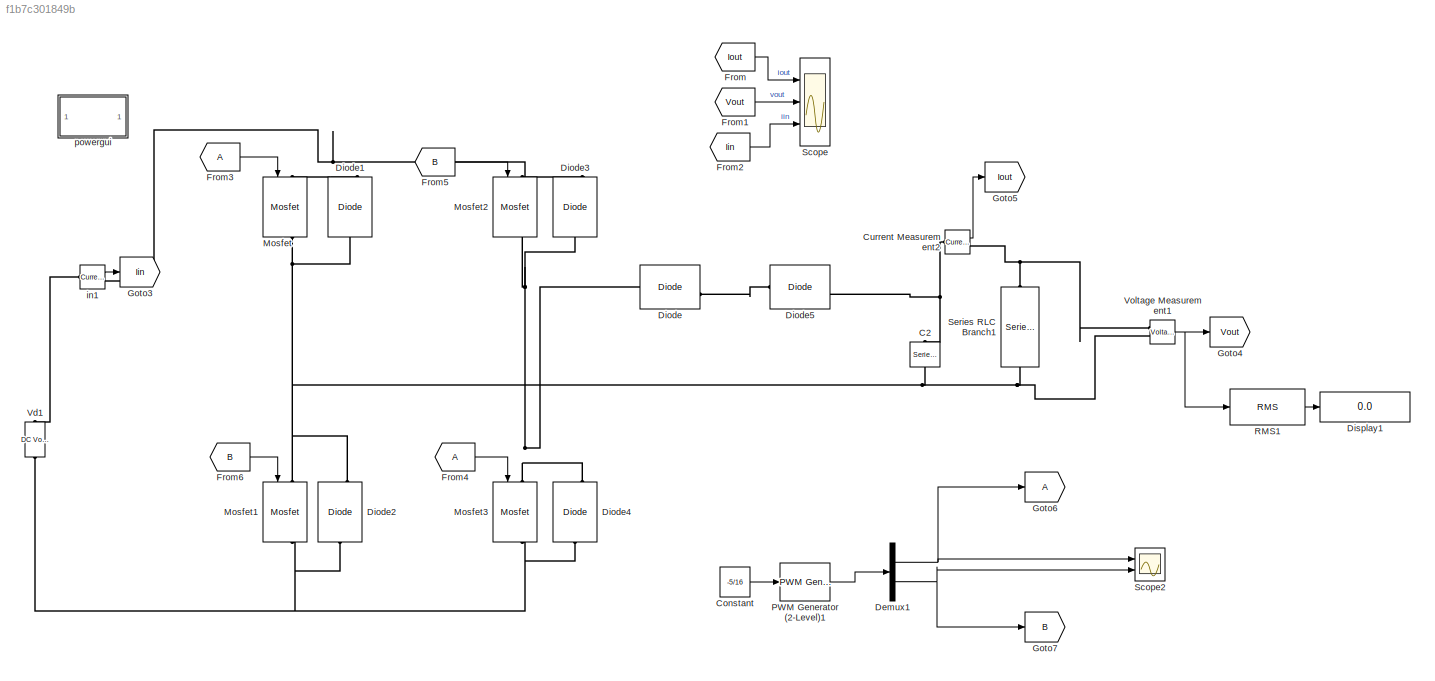
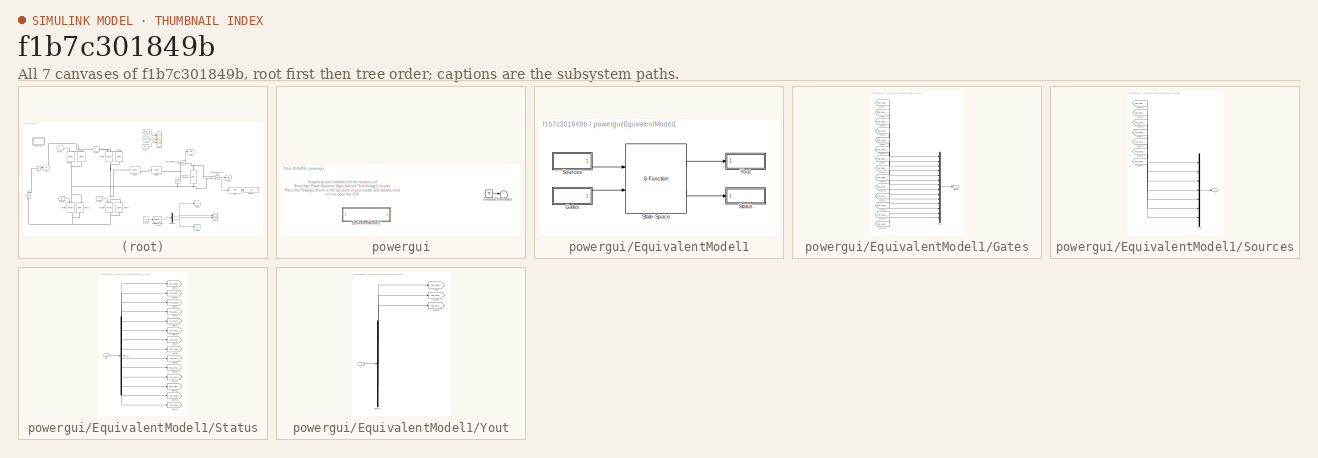
[diagram: thumbnail index - all 7 canvases of the model, root first then tree order]
MODEL slx_f1b7c301849b
KIND model
CONFIG AbsTol = auto
CONFIG EnableMultiTasking = on
CONFIG FixedStep = auto
CONFIG MaxStep = 1e-4
CONFIG MinStep = auto
CONFIG RelTol = 1e-3
CONFIG SampleTimeConstraint = Unconstrained
CONFIG Solver = VariableStepAuto
CONFIG SolverName = VariableStepAuto
CONFIG StartTime = 0.0
CONFIG StopTime = 15e-3
BLOCK [Reference] C2  REF=powerlib/Elements/Series RLC Branch
  Ports = [0, 0, 0, 0, 0, 1, 1]
  SourceBlock = powerlib/Elements/Series RLC Branch
  SourceProductBaseCode = PS
  SourceProductName = Simscape Power Systems
  SourceType = Series RLC Branch
BLOCK [Constant] Constant
  Value = -5/16
BLOCK [Reference] Current Measurement2  REF=powerlib/Measurements/Current Measurement
  Ports = [0, 1, 0, 0, 0, 1, 1]
  SourceBlock = powerlib/Measurements/Current Measurement
  SourceProductBaseCode = PS
  SourceProductName = Simscape Power Systems
  SourceType = Current Measurement
  UserDataPersistent = on
BLOCK [Demux] Demux1
  DisplayOption = bar
  Outputs = 2
  Ports = [1, 2]
BLOCK [Reference] Diode  REF=powerlib/Power
Electronics/Diode
  Ports = [0, 1, 0, 0, 0, 1, 1]
  SourceBlock = powerlib/Power\nElectronics/Diode
  SourceProductBaseCode = PS
  SourceProductName = Simscape Power Systems
  SourceType = Diode
BLOCK [Reference] Diode1  REF=powerlib/Power
Electronics/Diode
  Ports = [0, 1, 0, 0, 0, 1, 1]
  SourceBlock = powerlib/Power\nElectronics/Diode
  SourceProductBaseCode = PS
  SourceProductName = Simscape Power Systems
  SourceType = Diode
BLOCK [Reference] Diode2  REF=powerlib/Power
Electronics/Diode
  Ports = [0, 1, 0, 0, 0, 1, 1]
  SourceBlock = powerlib/Power\nElectronics/Diode
  SourceProductBaseCode = PS
  SourceProductName = Simscape Power Systems
  SourceType = Diode
BLOCK [Reference] Diode3  REF=powerlib/Power
Electronics/Diode
  Ports = [0, 1, 0, 0, 0, 1, 1]
  SourceBlock = powerlib/Power\nElectronics/Diode
  SourceProductBaseCode = PS
  SourceProductName = Simscape Power Systems
  SourceType = Diode
BLOCK [Reference] Diode4  REF=powerlib/Power
Electronics/Diode
  Ports = [0, 1, 0, 0, 0, 1, 1]
  SourceBlock = powerlib/Power\nElectronics/Diode
  SourceProductBaseCode = PS
  SourceProductName = Simscape Power Systems
  SourceType = Diode
BLOCK [Reference] Diode5  REF=powerlib/Power
Electronics/Diode
  Ports = [0, 1, 0, 0, 0, 1, 1]
  SourceBlock = powerlib/Power\nElectronics/Diode
  SourceProductBaseCode = PS
  SourceProductName = Simscape Power Systems
  SourceType = Diode
BLOCK [Display] Display1
  Decimation = 1
  Ports = [1]
BLOCK [From] From
  GotoTag = Iout
BLOCK [From] From1
  GotoTag = Vout
BLOCK [From] From2
  GotoTag = Iin
BLOCK [From] From3
BLOCK [From] From4
BLOCK [From] From5
  GotoTag = B
BLOCK [From] From6
  GotoTag = B
BLOCK [Goto] Goto3
  GotoTag = Iin
BLOCK [Goto] Goto4
  GotoTag = Vout
BLOCK [Goto] Goto5
  GotoTag = Iout
BLOCK [Goto] Goto6
BLOCK [Goto] Goto7
  GotoTag = B
BLOCK [Reference] Mosfet  REF=powerlib/Power
Electronics/Mosfet
  Ports = [1, 1, 0, 0, 0, 1, 1]
  SourceBlock = powerlib/Power\nElectronics/Mosfet
  SourceProductBaseCode = PS
  SourceProductName = Simscape Power Systems
  SourceType = Mosfet
BLOCK [Reference] Mosfet1  REF=powerlib/Power
Electronics/Mosfet
  Ports = [1, 1, 0, 0, 0, 1, 1]
  SourceBlock = powerlib/Power\nElectronics/Mosfet
  SourceProductBaseCode = PS
  SourceProductName = Simscape Power Systems
  SourceType = Mosfet
BLOCK [Reference] Mosfet2  REF=powerlib/Power
Electronics/Mosfet
  Ports = [1, 1, 0, 0, 0, 1, 1]
  SourceBlock = powerlib/Power\nElectronics/Mosfet
  SourceProductBaseCode = PS
  SourceProductName = Simscape Power Systems
  SourceType = Mosfet
BLOCK [Reference] Mosfet3  REF=powerlib/Power
Electronics/Mosfet
  Ports = [1, 1, 0, 0, 0, 1, 1]
  SourceBlock = powerlib/Power\nElectronics/Mosfet
  SourceProductBaseCode = PS
  SourceProductName = Simscape Power Systems
  SourceType = Mosfet
BLOCK [Reference] PWM Generator (2-Level)1  REF=powerlib_meascontrol/Pulse & Signal
Generators/PWM Generator
(2-Level)
  Ports = [1, 1]
  SourceBlock = powerlib_meascontrol/Pulse & Signal\nGenerators/PWM Generator\n(2-Level)
  SourceProductBaseCode = PS
  SourceProductName = Simscape Power Systems
  SourceType = PWM Generator (2-Level)
BLOCK [Reference] RMS1  REF=dspstat3/RMS
  Ports = [1, 1]
  SourceBlock = dspstat3/RMS
  SourceProductBaseCode = DS
  SourceProductName = DSP System Toolbox
  SourceType = RMS
  UserDataPersistent = on
BLOCK [Scope] Scope
  NumInputPorts = 3
  Ports = [3]
  ScopeSpecificationString = Simulink.scopes.TimeScopeBlockCfg('CurrentConfiguration', extmgr.ConfigurationSet(extmgr.Configuration('Core','General UI',true,'FigureColor',[1 1 1]),extmgr.Configuration('Core','Source UI',true),extmgr.Configuration('Sources','WiredSimulink',true),extmgr.Configuration('Visuals','Time Domain',true,'SerializedDisplays',{struct('MinYLimReal','-1.98673','MaxYLimReal','17.88054','YLabelReal','','MinY...<+3457ch>
BLOCK [Scope] Scope2
  NumInputPorts = 2
  Ports = [2]
  ScopeSpecificationString = Simulink.scopes.TimeScopeBlockCfg('CurrentConfiguration', extmgr.ConfigurationSet(extmgr.Configuration('Core','General UI',true),extmgr.Configuration('Core','Source UI',true),extmgr.Configuration('Sources','WiredSimulink',true,'DataLoggingVariableName','ScopeData2'),extmgr.Configuration('Visuals','Time Domain',true,'SerializedDisplays',{struct('MinYLimReal','-0.03533','MaxYLimReal','1.04244','YLab...<+2051ch>
BLOCK [Reference] Series RLC Branch1  REF=powerlib/Elements/Series RLC Branch
  Ports = [0, 0, 0, 0, 0, 1, 1]
  SourceBlock = powerlib/Elements/Series RLC Branch
  SourceProductBaseCode = PS
  SourceProductName = Simscape Power Systems
  SourceType = Series RLC Branch
BLOCK [Reference] Vd1  REF=powerlib/Electrical
Sources/DC Voltage Source
  Ports = [0, 0, 0, 0, 0, 1, 1]
  SourceBlock = powerlib/Electrical\nSources/DC Voltage Source
  SourceProductBaseCode = PS
  SourceProductName = Simscape Power Systems
  SourceType = DC Voltage Source
BLOCK [Reference] Voltage Measurement1  REF=powerlib/Measurements/Voltage Measurement
  Ports = [0, 1, 0, 0, 0, 2]
  SourceBlock = powerlib/Measurements/Voltage Measurement
  SourceProductBaseCode = PS
  SourceProductName = Simscape Power Systems
  SourceType = Voltage Measurement
  UserDataPersistent = on
BLOCK [Reference] in1  REF=powerlib/Measurements/Current Measurement
  Ports = [0, 1, 0, 0, 0, 1, 1]
  SourceBlock = powerlib/Measurements/Current Measurement
  SourceProductBaseCode = PS
  SourceProductName = Simscape Power Systems
  SourceType = Current Measurement
  UserDataPersistent = on
BLOCK [SubSystem] powergui
  AncestorBlock = powerlib/powergui
  DialogController = POWERSYS.PowerSysDialog
  InitFcn = powergui( 'InitFcn_Callback' , gcb , 0 , [ ] );
  OpenFcn = sps_rtmsupport('OpenFcn',gcbh)
  Ports = []
  PreSaveFcn = powergui( 'PreSaveFcn_Callback' , gcb , [ ] , [ ] );
  Priority = 1
  RequestExecContextInheritance = off
  Variant = off
BLOCK [SubSystem] powergui/EquivalentModel1
  Ports = []
  RequestExecContextInheritance = off
  Variant = off
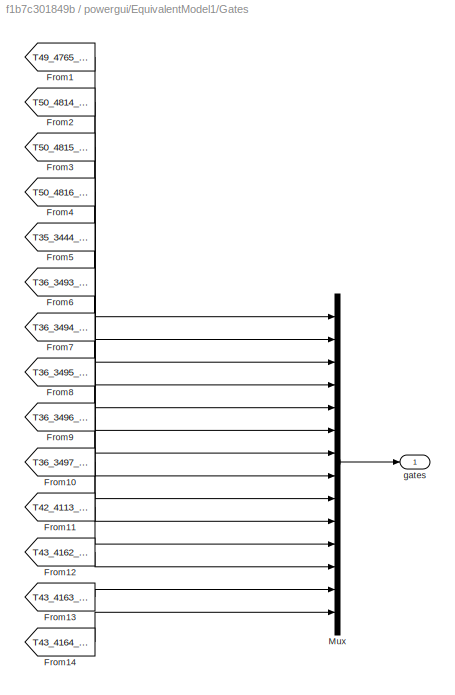
BLOCK [SubSystem] powergui/EquivalentModel1/Gates
  Ports = [0, 1]
  RequestExecContextInheritance = off
  Variant = off
BLOCK [From] powergui/EquivalentModel1/Gates/From1
  GotoTag = T49_4765_3776215220043
  TagVisibility = global
BLOCK [From] powergui/EquivalentModel1/Gates/From10
  GotoTag = T36_3497_1931408436786
  TagVisibility = global
BLOCK [From] powergui/EquivalentModel1/Gates/From11
  GotoTag = T42_4113_2713784241858
  TagVisibility = global
BLOCK [From] powergui/EquivalentModel1/Gates/From12
  GotoTag = T43_4162_2787571945869
  TagVisibility = global
BLOCK [From] powergui/EquivalentModel1/Gates/From13
  GotoTag = T43_4163_2786274727962
  TagVisibility = global
BLOCK [From] powergui/EquivalentModel1/Gates/From14
  GotoTag = T43_4164_2785056844474
  TagVisibility = global
BLOCK [From] powergui/EquivalentModel1/Gates/From2
  GotoTag = T50_4814_3915036252506
  TagVisibility = global
BLOCK [From] powergui/EquivalentModel1/Gates/From3
  GotoTag = T50_4815_3913216397506
  TagVisibility = global
BLOCK [From] powergui/EquivalentModel1/Gates/From4
  GotoTag = T50_4816_3911464770106
  TagVisibility = global
BLOCK [From] powergui/EquivalentModel1/Gates/From5
  GotoTag = T35_3444_1914061800807
  TagVisibility = global
BLOCK [From] powergui/EquivalentModel1/Gates/From6
  GotoTag = T36_3493_1933610976468
  TagVisibility = global
BLOCK [From] powergui/EquivalentModel1/Gates/From7
  GotoTag = T36_3494_1932927008214
  TagVisibility = global
BLOCK [From] powergui/EquivalentModel1/Gates/From8
  GotoTag = T36_3495_1932331928849
  TagVisibility = global
BLOCK [From] powergui/EquivalentModel1/Gates/From9
  GotoTag = T36_3496_1931825738373
  TagVisibility = global
BLOCK [Mux] powergui/EquivalentModel1/Gates/Mux
  DisplayOption = bar
  Inputs = [1 1 1 1 1 1 1 1 1 1 1 1 1 1]
  Ports = [14, 1]
BLOCK [Outport] powergui/EquivalentModel1/Gates/gates
  IconDisplay = Port number
BLOCK [SubSystem] powergui/EquivalentModel1/Sources
  Ports = [0, 1]
  RequestExecContextInheritance = off
  Variant = off
BLOCK [From] powergui/EquivalentModel1/Sources/From1
  GotoTag = T33_3194_1616235997557
  TagVisibility = global
BLOCK [From] powergui/EquivalentModel1/Sources/From2
  GotoTag = T33_3191_1371398149678
  TagVisibility = global
BLOCK [From] powergui/EquivalentModel1/Sources/From3
  GotoTag = T34_3240_1345314080116
  TagVisibility = global
BLOCK [From] powergui/EquivalentModel1/Sources/From4
  GotoTag = T34_3241_1345088276194
  TagVisibility = global
BLOCK [From] powergui/EquivalentModel1/Sources/From5
  GotoTag = T34_3242_1344956589920
  TagVisibility = global
BLOCK [From] powergui/EquivalentModel1/Sources/From6
  GotoTag = T34_3243_1344919021292
  TagVisibility = global
BLOCK [From] powergui/EquivalentModel1/Sources/From7
  GotoTag = T34_3244_1344975570312
  TagVisibility = global
BLOCK [Mux] powergui/EquivalentModel1/Sources/Mux
  DisplayOption = bar
  Inputs = [1 1 1 1 1 1 1]
  Ports = [7, 1]
BLOCK [Outport] powergui/EquivalentModel1/Sources/u
  IconDisplay = Port number
BLOCK [S-Function] powergui/EquivalentModel1/State-Space
  EnableBusSupport = off
  FunctionName = sfun_spid_contc
  Parameters = S.Mg, [S.nb.x S.nb.u S.nb.y S.nb.s], S.x0, S.MgColNames, S.SwitchVf, S.SwitchType, S.SwitchGateInitialValue, S.SwitchTolerance,S.SaveMatrices,S.BufferSize
  Ports = [2, 2]
  SFcnIsStateOwnerBlock = off
  SFunctionDeploymentMode = off
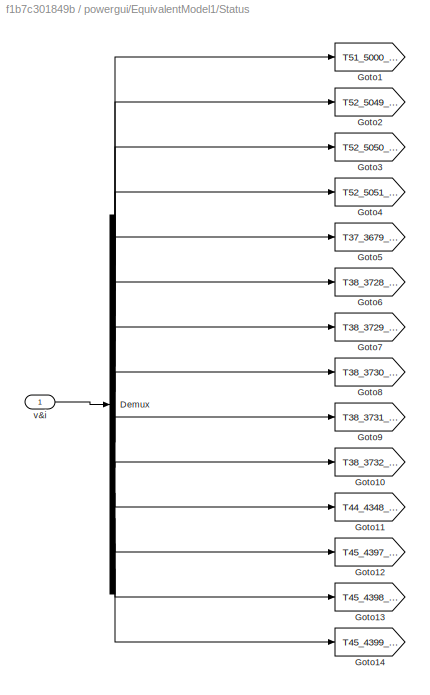
BLOCK [SubSystem] powergui/EquivalentModel1/Status
  Ports = [1]
  RequestExecContextInheritance = off
  Variant = off
BLOCK [Demux] powergui/EquivalentModel1/Status/Demux
  DisplayOption = bar
  Outputs = [2 2 2 2 2 2 2 2 2 2 2 2 2 2]
  Ports = [1, 14]
BLOCK [Goto] powergui/EquivalentModel1/Status/Goto1
  GotoTag = T51_5000_4369165291835
  TagVisibility = global
BLOCK [Goto] powergui/EquivalentModel1/Status/Goto10
  GotoTag = T38_3732_2375832757667
  TagVisibility = global
BLOCK [Goto] powergui/EquivalentModel1/Status/Goto11
  GotoTag = T44_4348_3216779706147
  TagVisibility = global
BLOCK [Goto] powergui/EquivalentModel1/Status/Goto12
  GotoTag = T45_4397_3322042081495
  TagVisibility = global
BLOCK [Goto] powergui/EquivalentModel1/Status/Goto13
  GotoTag = T45_4398_3320466999616
  TagVisibility = global
BLOCK [Goto] powergui/EquivalentModel1/Status/Goto14
  GotoTag = T45_4399_3318967726182
  TagVisibility = global
BLOCK [Goto] powergui/EquivalentModel1/Status/Goto2
  GotoTag = T52_5049_4535289229544
  TagVisibility = global
BLOCK [Goto] powergui/EquivalentModel1/Status/Goto3
  GotoTag = T52_5050_4533248817994
  TagVisibility = global
BLOCK [Goto] powergui/EquivalentModel1/Status/Goto4
  GotoTag = T52_5051_4531274009906
  TagVisibility = global
BLOCK [Goto] powergui/EquivalentModel1/Status/Goto5
  GotoTag = T37_3679_2324086385225
  TagVisibility = global
BLOCK [Goto] powergui/EquivalentModel1/Status/Goto6
  GotoTag = T38_3728_2379459727795
  TagVisibility = global
BLOCK [Goto] powergui/EquivalentModel1/Status/Goto7
  GotoTag = T38_3729_2378426669474
  TagVisibility = global
BLOCK [Goto] powergui/EquivalentModel1/Status/Goto8
  GotoTag = T38_3730_2377477821679
  TagVisibility = global
BLOCK [Goto] powergui/EquivalentModel1/Status/Goto9
  GotoTag = T38_3731_2376613184410
  TagVisibility = global
BLOCK [Inport] powergui/EquivalentModel1/Status/v&i
  IconDisplay = Port number
BLOCK [SubSystem] powergui/EquivalentModel1/Yout
  Ports = [1]
  RequestExecContextInheritance = off
  Variant = off
BLOCK [Demux] powergui/EquivalentModel1/Yout/Demux
  DisplayOption = bar
  Outputs = [1 1 1]
  Ports = [1, 3]
BLOCK [Goto] powergui/EquivalentModel1/Yout/Goto1
  GotoTag = T52_5168_4565973424268
  TagVisibility = global
BLOCK [Goto] powergui/EquivalentModel1/Yout/Goto2
  GotoTag = T52_5186_4630830018250
  TagVisibility = global
BLOCK [Goto] powergui/EquivalentModel1/Yout/Goto3
  GotoTag = T35_3471_2056023859277
  TagVisibility = global
BLOCK [Inport] powergui/EquivalentModel1/Yout/v,i
  IconDisplay = Port number
BLOCK [Ground] powergui/Ground
BLOCK [Terminator] powergui/Terminator
ANNOTATION powergui: Graphical user interface for the analysis of Simscape Power Systems (Specialized Technology) circuits. Place the Powergui block in the top-level of your model and double-click on it to open the GUI.
LINE Constant:1 -> PWM Generator (2-Level)1:1
LINE Current Measurement2:1 -> Goto5:1
NET Demux1:1 -> Goto6:1, Scope2:1
NET Demux1:2 -> Goto7:1, Scope2:2
LINE From1:1 -> Scope:2
LINE From2:1 -> Scope:3
LINE From3:1 -> Mosfet:1
LINE From4:1 -> Mosfet3:1
LINE From5:1 -> Mosfet2:1
LINE From6:1 -> Mosfet1:1
LINE From:1 -> Scope:1
LINE PWM Generator (2-Level)1:1 -> Demux1:1
LINE RMS1:1 -> Display1:1
NET Voltage Measurement1:1 -> Goto4:1, RMS1:1
LINE in1:1 -> Goto3:1
PNET net1: C2:LConn1 -- Current Measurement2:LConn1 -- Diode5:RConn1
PNET net2: C2:RConn1 -- Diode1:LConn1 -- Diode2:RConn1 -- Mosfet1:LConn1 -- Mosfet:RConn1 -- Series RLC Branch1:RConn1 -- Voltage Measurement1:LConn2
PNET net3: Current Measurement2:RConn1 -- Series RLC Branch1:LConn1 -- Voltage Measurement1:LConn1
PNET net4: Diode1:RConn1 -- Diode3:RConn1 -- Mosfet2:LConn1 -- Mosfet:LConn1 -- in1:RConn1
PNET net5: Diode2:LConn1 -- Diode4:LConn1 -- Mosfet1:RConn1 -- Mosfet3:RConn1 -- Vd1:LConn1
PNET net6: Diode3:LConn1 -- Diode4:RConn1 -- Diode:LConn1 -- Mosfet2:RConn1 -- Mosfet3:LConn1
PLINE Diode5:LConn1 -- Diode:RConn1
PLINE Vd1:RConn1 -- in1:LConn1
note: NET lines group one-source signal fan-out (src -> all destinations, sorted); 1:1 wires keep LINE; PNET lines group multi-terminal physical nets as a canonical sorted terminal list (undirected conserving connections); 2-terminal nets keep the pairwise PLINE form
